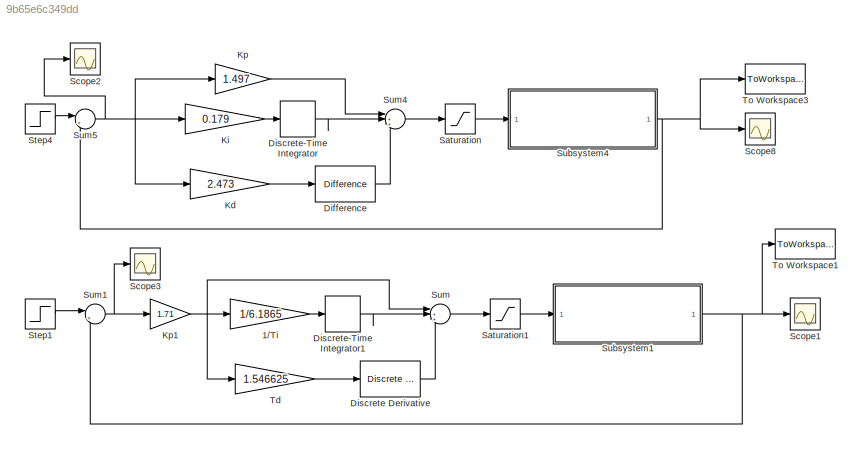
MODEL slx_9b65e6c349dd
KIND model
CONFIG AbsTol = auto
CONFIG FixedStep = 0.01
CONFIG MaxStep = auto
CONFIG MinStep = auto
CONFIG RelTol = 1e-3
CONFIG SampleTimeConstraint = Unconstrained
CONFIG Solver = ode3
CONFIG SolverMode = Auto
CONFIG SolverName = ode3
CONFIG StartTime = 0.0
CONFIG StopTime = 50
BLOCK [Gain] 1//Ti
  Gain = 1/6.1865
  OutDataTypeStr = Inherit: Inherit via internal rule
  ParamDataTypeStr = Inherit: Inherit via internal rule
  SaturateOnIntegerOverflow = off
BLOCK [Reference] Difference  REF=simulink/Discrete/Difference
  DoSatur = off
  ICPrevInput = 0.0
  InputProcessing = Inherited
  LockScale = off
  OutDataType = fixdt(1, 16)
  OutDataTypeStr = Inherit: Inherit via internal rule
  OutMax = []
  OutMin = []
  OutScaling = 2^-10
  OutputDataTypeScalingMode = Inherit via internal rule
  Ports = [1, 1]
  RndMeth = Floor
  SourceBlock = simulink/Discrete/Difference
  SourceType = Difference
BLOCK [Reference] Discrete Derivative  REF=simulink/Discrete/Discrete Derivative
  DoSatur = off
  ICPrevScaledInput = 0.0
  InputProcessing = Inherited
  LockScale = off
  OutDataType = fixdt(1, 16)
  OutDataTypeStr = Inherit: Inherit via internal rule
  OutMax = []
  OutMin = []
  OutScaling = 2^-10
  OutputDataTypeScalingMode = Inherit via internal rule
  Ports = [1, 1]
  RndMeth = Floor
  SourceBlock = simulink/Discrete/Discrete Derivative
  SourceType = Discrete Derivative
  gainval = 1.0
BLOCK [DiscreteIntegrator] Discrete-Time Integrator
  InitialConditionSetting = State (most efficient)
  Ports = [1, 1]
  SampleTime = 0.01
BLOCK [DiscreteIntegrator] Discrete-Time Integrator1
  InitialConditionSetting = State (most efficient)
  Ports = [1, 1]
  SampleTime = 0.01
BLOCK [Gain] Kd
  Gain = 2.473
  OutDataTypeStr = Inherit: Inherit via internal rule
  ParamDataTypeStr = Inherit: Inherit via internal rule
  SaturateOnIntegerOverflow = off
BLOCK [Gain] Ki
  Gain = 0.179
  OutDataTypeStr = Inherit: Inherit via internal rule
  ParamDataTypeStr = Inherit: Inherit via internal rule
  SaturateOnIntegerOverflow = off
BLOCK [Gain] Kp
  Gain = 1.497
  OutDataTypeStr = Inherit: Inherit via internal rule
  ParamDataTypeStr = Inherit: Inherit via internal rule
  SaturateOnIntegerOverflow = off
BLOCK [Gain] Kp1
  Gain = 1.71
  OutDataTypeStr = Inherit: Inherit via internal rule
  ParamDataTypeStr = Inherit: Inherit via internal rule
  SaturateOnIntegerOverflow = off
BLOCK [Saturate] Saturation
  InputPortMap = u0
  LowerLimit = .9
  Ports = [1, 1]
  UpperLimit = 1.05
BLOCK [Saturate] Saturation1
  InputPortMap = u0
  LowerLimit = -.2
  Ports = [1, 1]
  UpperLimit = 1.3
BLOCK [Scope] Scope1
  Floating = off
  LimitDataPoints = off
  NumInputPorts = 1
  Ports = [1]
  TimeRange = 50
  YMax = 0.581199999999775
  YMin = 0.5811999999996471
  ZoomMode = xonly
BLOCK [Scope] Scope2
  Floating = off
  LimitDataPoints = off
  NumInputPorts = 1
  Ports = [1]
  SaveName = ScopeData1
  TimeRange = 50
  YMax = 0.581199999999775
  YMin = 0.5811999999996471
  ZoomMode = xonly
BLOCK [Scope] Scope3
  Floating = off
  LimitDataPoints = off
  NumInputPorts = 1
  Ports = [1]
  SaveName = ScopeData2
  TimeRange = 50
  YMax = 0.581199999999775
  YMin = 0.5811999999996471
  ZoomMode = xonly
BLOCK [Scope] Scope8
  Floating = off
  LimitDataPoints = off
  NumInputPorts = 1
  Ports = [1]
  SaveName = ScopeData7
  TimeRange = 50
  YMax = 0.581199999999775
  YMin = 0.5811999999996471
  ZoomMode = xonly
BLOCK [Step] Step1
  SampleTime = 0
BLOCK [Step] Step4
  SampleTime = 0
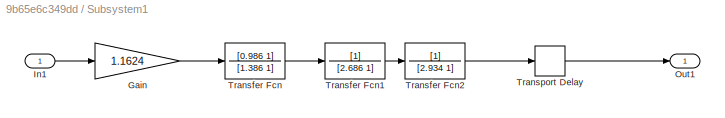
BLOCK [SubSystem] Subsystem1
  Ports = [1, 1]
  RequestExecContextInheritance = off
BLOCK [Gain] Subsystem1/Gain
  Gain = 1.1624
  OutDataTypeStr = Inherit: Inherit via internal rule
  ParamDataTypeStr = Inherit: Inherit via internal rule
  SaturateOnIntegerOverflow = off
BLOCK [Inport] Subsystem1/In1
  IconDisplay = Port number
BLOCK [Outport] Subsystem1/Out1
  IconDisplay = Port number
BLOCK [TransferFcn] Subsystem1/Transfer Fcn
  Denominator = [1.386 1]
  Numerator = [0.986 1]
BLOCK [TransferFcn] Subsystem1/Transfer Fcn1
  Denominator = [2.686 1]
BLOCK [TransferFcn] Subsystem1/Transfer Fcn2
  Denominator = [2.934 1]
BLOCK [TransportDelay] Subsystem1/Transport Delay
  BufferSize = 21504
  DelayTime = 2.122
  Ports = [1, 1]
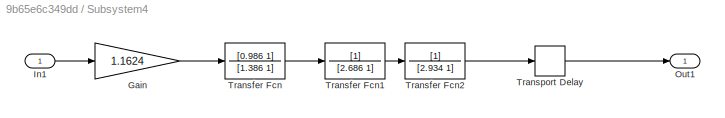
BLOCK [SubSystem] Subsystem4
  Ports = [1, 1]
  RequestExecContextInheritance = off
BLOCK [Gain] Subsystem4/Gain
  Gain = 1.1624
  OutDataTypeStr = Inherit: Inherit via internal rule
  ParamDataTypeStr = Inherit: Inherit via internal rule
  SaturateOnIntegerOverflow = off
BLOCK [Inport] Subsystem4/In1
  IconDisplay = Port number
BLOCK [Outport] Subsystem4/Out1
  IconDisplay = Port number
BLOCK [TransferFcn] Subsystem4/Transfer Fcn
  Denominator = [1.386 1]
  Numerator = [0.986 1]
BLOCK [TransferFcn] Subsystem4/Transfer Fcn1
  Denominator = [2.686 1]
BLOCK [TransferFcn] Subsystem4/Transfer Fcn2
  Denominator = [2.934 1]
BLOCK [TransportDelay] Subsystem4/Transport Delay
  BufferSize = 21504
  DelayTime = 2.122
  Ports = [1, 1]
BLOCK [Sum] Sum
  IconShape = round
  InputSameDT = off
  Inputs = |+++
  OutDataTypeStr = Inherit: Inherit via internal rule
  Ports = [3, 1]
  SaturateOnIntegerOverflow = off
BLOCK [Sum] Sum1
  IconShape = round
  InputSameDT = off
  Inputs = |+-
  OutDataTypeStr = Inherit: Inherit via internal rule
  Ports = [2, 1]
  SaturateOnIntegerOverflow = off
BLOCK [Sum] Sum4
  IconShape = round
  InputSameDT = off
  Inputs = |+++
  OutDataTypeStr = Inherit: Inherit via internal rule
  Ports = [3, 1]
  SaturateOnIntegerOverflow = off
BLOCK [Sum] Sum5
  IconShape = round
  InputSameDT = off
  Inputs = |+-
  OutDataTypeStr = Inherit: Inherit via internal rule
  Ports = [2, 1]
  SaturateOnIntegerOverflow = off
BLOCK [Gain] Td
  Gain = 1.546625
  OutDataTypeStr = Inherit: Inherit via internal rule
  ParamDataTypeStr = Inherit: Inherit via internal rule
  SaturateOnIntegerOverflow = off
BLOCK [ToWorkspace] To Workspace1
  FixptAsFi = on
  MaxDataPoints = inf
  Ports = [1]
  SampleTime = -1
  Save2DSignal = 3-D array (concatenate along third dimension)
  SaveFormat = Timeseries
  VariableName = skok_P
BLOCK [ToWorkspace] To Workspace3
  FixptAsFi = on
  MaxDataPoints = inf
  Ports = [1]
  SampleTime = -1
  Save2DSignal = 3-D array (concatenate along third dimension)
  SaveFormat = Timeseries
  VariableName = skok_P1
LINE 1//Ti:1 -> Discrete-Time Integrator1:1
LINE Difference:1 -> Sum4:3
LINE Discrete Derivative:1 -> Sum:3
LINE Discrete-Time Integrator1:1 -> Sum:2
LINE Discrete-Time Integrator:1 -> Sum4:2
LINE Kd:1 -> Difference:1
LINE Ki:1 -> Discrete-Time Integrator:1
NET Kp1:1 -> 1//Ti:1, Sum:1, Td:1
LINE Kp:1 -> Sum4:1
LINE Saturation1:1 -> Subsystem1:1
LINE Saturation:1 -> Subsystem4:1
LINE Step1:1 -> Sum1:1
LINE Step4:1 -> Sum5:1
LINE Subsystem1/Gain:1 -> Subsystem1/Transfer Fcn:1
LINE Subsystem1/In1:1 -> Subsystem1/Gain:1
LINE Subsystem1/Transfer Fcn1:1 -> Subsystem1/Transfer Fcn2:1
LINE Subsystem1/Transfer Fcn2:1 -> Subsystem1/Transport Delay:1
LINE Subsystem1/Transfer Fcn:1 -> Subsystem1/Transfer Fcn1:1
LINE Subsystem1/Transport Delay:1 -> Subsystem1/Out1:1
NET Subsystem1:1 -> Scope1:1, Sum1:2, To Workspace1:1
LINE Subsystem4/Gain:1 -> Subsystem4/Transfer Fcn:1
LINE Subsystem4/In1:1 -> Subsystem4/Gain:1
LINE Subsystem4/Transfer Fcn1:1 -> Subsystem4/Transfer Fcn2:1
LINE Subsystem4/Transfer Fcn2:1 -> Subsystem4/Transport Delay:1
LINE Subsystem4/Transfer Fcn:1 -> Subsystem4/Transfer Fcn1:1
LINE Subsystem4/Transport Delay:1 -> Subsystem4/Out1:1
NET Subsystem4:1 -> Scope8:1, Sum5:2, To Workspace3:1
NET Sum1:1 -> Kp1:1, Scope3:1
LINE Sum4:1 -> Saturation:1
NET Sum5:1 -> Kd:1, Ki:1, Kp:1, Scope2:1
LINE Sum:1 -> Saturation1:1
LINE Td:1 -> Discrete Derivative:1
note: NET lines group one-source signal fan-out (src -> all destinations, sorted); 1:1 wires keep LINE
